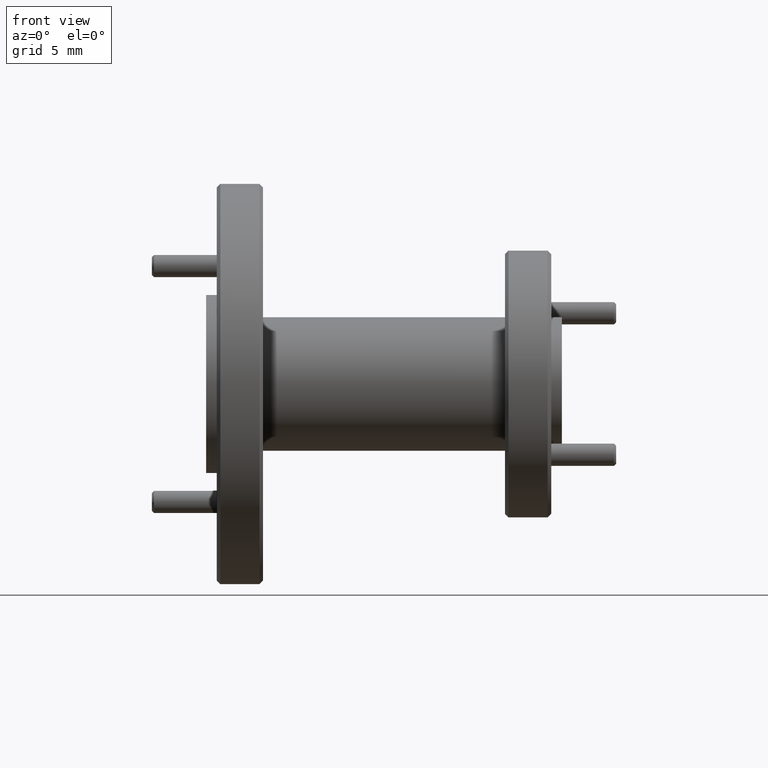
[diagram: clean part render]
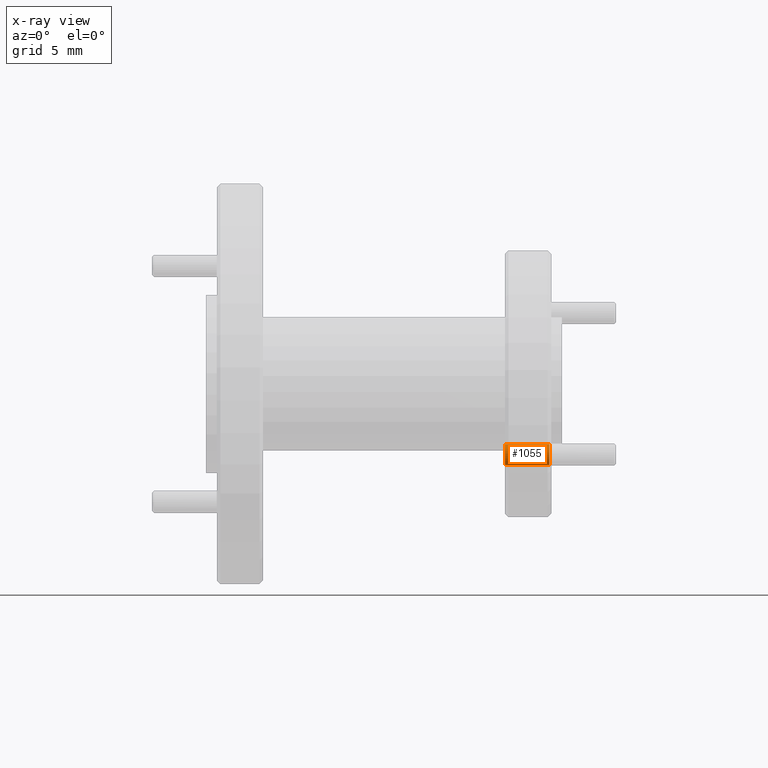
[diagram: x-ray — body ghosted, one internal face saturated and labeled with its STEP entity id]
A machine part, front view, then the same camera in x-ray: the body is ghosted and one INTERNAL B-rep face — a face not visible from any outside direction — is saturated and labeled: STEP entity #1055.
In plain terms, the highlighted cylindrical surface (edge-blend (fillet) strip) has radius 0.7556 mm, axis along (1, -0, -0).
Its self-contained STEP definition (entity closure, byte-faithful):
#44 = CARTESIAN_POINT ( 'NONE',  ( -1.156036104178505700, 0.6722690723030522200, 0.03757170999940875900 ) ) ;
#112 = CARTESIAN_POINT ( 'NONE',  ( -1.161286104178505600, 0.6722690723030522200, 0.03757170999940875900 ) ) ;
#287 = CARTESIAN_POINT ( 'NONE',  ( -1.161286104178505600, 0.6722690723030522200, 0.09707170999940870100 ) ) ;
#365 = CARTESIAN_POINT ( 'NONE',  ( -1.161286104178505600, 0.6722690723030522200, 0.06732170999940873000 ) ) ;
#366 = VERTEX_POINT ( 'NONE', #287 ) ;
#402 = CARTESIAN_POINT ( 'NONE',  ( -1.286036104178505300, 0.6722690723030522200, 0.03757170999940875900 ) ) ;
#405 = VERTEX_POINT ( 'NONE', #1858 ) ;
#415 = DIRECTION ( 'NONE',  ( 1.000000000000000000, -1.598615139904834900E-061, -1.956366136326174300E-050 ) ) ;
#564 = DIRECTION ( 'NONE',  ( 1.000000000000000000, -1.598615139904834900E-061, -1.956366136326174500E-050 ) ) ;
#585 = DIRECTION ( 'NONE',  ( 0.0000000000000000000, 0.0000000000000000000, -1.000000000000000000 ) ) ;
#659 = DIRECTION ( 'NONE',  ( 1.000000000000000000, -1.598615139904834900E-061, -1.956366136326174300E-050 ) ) ;
#730 = VERTEX_POINT ( 'NONE', #112 ) ;
#855 = ORIENTED_EDGE ( 'NONE', *, *, #2019, .F. ) ;
#856 = CARTESIAN_POINT ( 'NONE',  ( -1.156036104178505700, 0.6722690723030522200, 0.06732170999940873000 ) ) ;
#1044 = AXIS2_PLACEMENT_3D ( 'NONE', #1708, #1379, #3773 ) ;
#1048 = CARTESIAN_POINT ( 'NONE',  ( -1.161286104178505600, 0.6425190723030521600, 0.06732170999940874400 ) ) ;
#1055 = ADVANCED_FACE ( 'NONE', ( #2530 ), #3636, .F. ) ;
#1077 = CIRCLE ( 'NONE', #2206, 0.02974999999999997100 ) ;
#1126 = ORIENTED_EDGE ( 'NONE', *, *, #2978, .T. ) ;
#1169 = EDGE_CURVE ( 'NONE', #1447, #366, #1225, .T. ) ;
#1177 = DIRECTION ( 'NONE',  ( 0.0000000000000000000, 0.0000000000000000000, -1.000000000000000000 ) ) ;
#1179 = EDGE_CURVE ( 'NONE', #1188, #730, #2207, .T. ) ;
#1188 = VERTEX_POINT ( 'NONE', #402 ) ;
#1219 = DIRECTION ( 'NONE',  ( -1.000000000000000000, 1.598615139904834900E-061, 1.956366136326174500E-050 ) ) ;
#1225 = CIRCLE ( 'NONE', #3254, 0.02974999999999997100 ) ;
#1365 = VECTOR ( 'NONE', #659, 39.37007874015748100 ) ;
#1379 = DIRECTION ( 'NONE',  ( -1.000000000000000000, 1.598615139904834900E-061, 1.956366136326174500E-050 ) ) ;
#1447 = VERTEX_POINT ( 'NONE', #1048 ) ;
#1588 = ORIENTED_EDGE ( 'NONE', *, *, #1179, .F. ) ;
#1644 = CARTESIAN_POINT ( 'NONE',  ( -1.156036104178505700, 0.6722690723030522200, 0.09707170999940870100 ) ) ;
#1708 = CARTESIAN_POINT ( 'NONE',  ( -1.161286104178505600, 0.6722690723030522200, 0.06732170999940873000 ) ) ;
#1713 = EDGE_LOOP ( 'NONE', ( #3190, #1126, #3234, #855, #1588 ) ) ;
#1852 = AXIS2_PLACEMENT_3D ( 'NONE', #856, #564, #1177 ) ;
#1858 = CARTESIAN_POINT ( 'NONE',  ( -1.286036104178505300, 0.6722690723030522200, 0.09707170999940870100 ) ) ;
#2019 = EDGE_CURVE ( 'NONE', #730, #1447, #2890, .T. ) ;
#2179 = CARTESIAN_POINT ( 'NONE',  ( -1.286036104178505300, 0.6722690723030522200, 0.06732170999940873000 ) ) ;
#2187 = DIRECTION ( 'NONE',  ( -1.000000000000000000, 1.598615139904834900E-061, 1.956366136326174500E-050 ) ) ;
#2206 = AXIS2_PLACEMENT_3D ( 'NONE', #2179, #1219, #585 ) ;
#2207 = LINE ( 'NONE', #44, #1365 ) ;
#2261 = EDGE_CURVE ( 'NONE', #1188, #405, #1077, .T. ) ;
#2421 = VECTOR ( 'NONE', #415, 39.37007874015748100 ) ;
#2469 = LINE ( 'NONE', #1644, #2421 ) ;
#2484 = DIRECTION ( 'NONE',  ( 0.0000000000000000000, 0.0000000000000000000, -1.000000000000000000 ) ) ;
#2530 = FACE_OUTER_BOUND ( 'NONE', #1713, .T. ) ;
#2890 = CIRCLE ( 'NONE', #1044, 0.02974999999999997100 ) ;
#2978 = EDGE_CURVE ( 'NONE', #405, #366, #2469, .T. ) ;
#3190 = ORIENTED_EDGE ( 'NONE', *, *, #2261, .T. ) ;
#3234 = ORIENTED_EDGE ( 'NONE', *, *, #1169, .F. ) ;
#3254 = AXIS2_PLACEMENT_3D ( 'NONE', #365, #2187, #2484 ) ;
#3636 = CYLINDRICAL_SURFACE ( 'NONE', #1852, 0.02974999999999997100 ) ;
#3773 = DIRECTION ( 'NONE',  ( 0.0000000000000000000, 0.0000000000000000000, -1.000000000000000000 ) ) ;